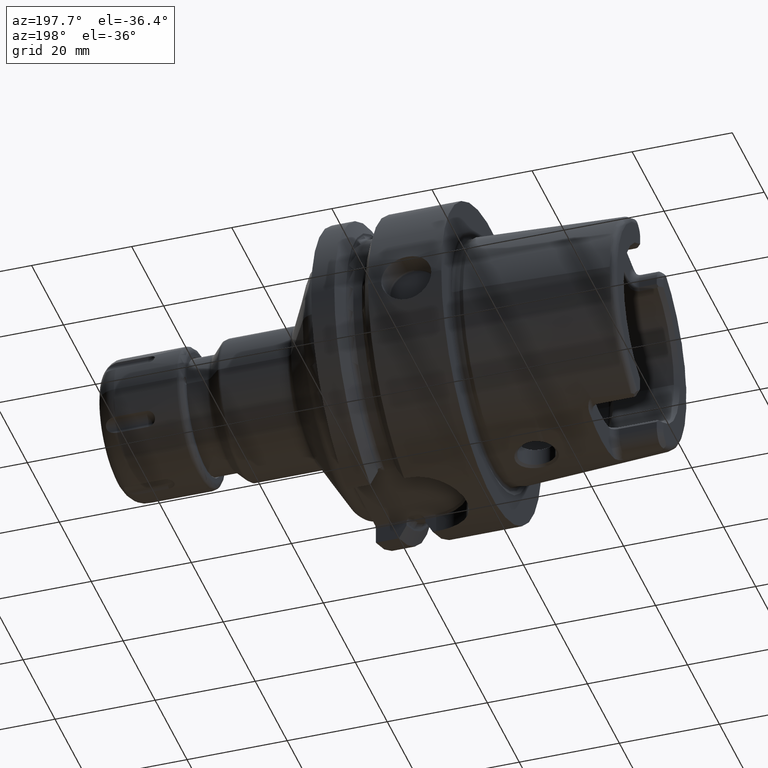
[diagram: clean part render]
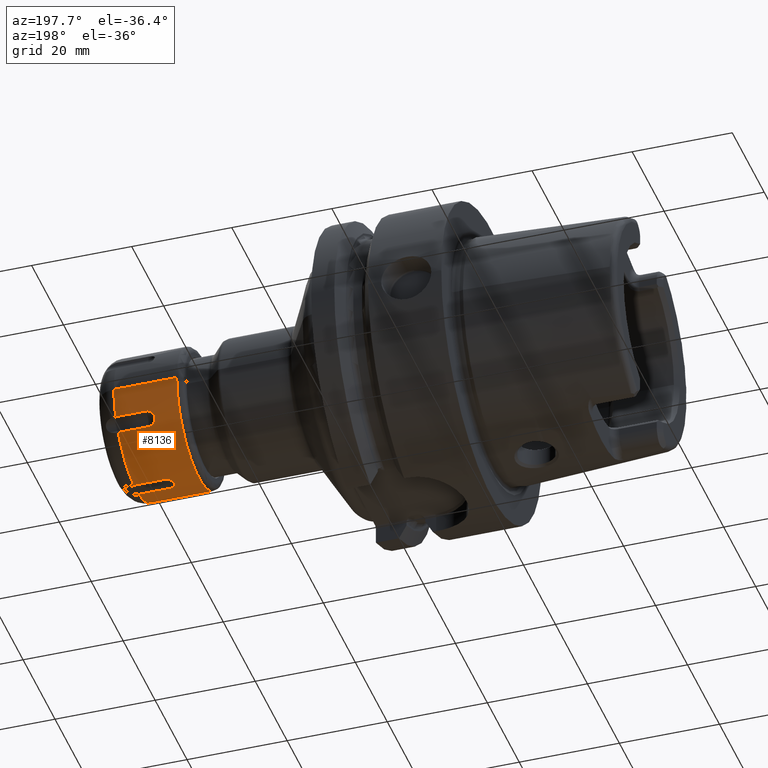
[diagram: same view with one face highlighted and labeled with its STEP entity id]
A machine part, auxiliary view. The second image highlights one B-rep face of the part: STEP entity #8136.
In plain terms, the highlighted cylindrical surface (partial cylindrical patch) has radius 14 mm, axis along (-1, 0, 0).
Its self-contained STEP definition (entity closure, byte-faithful):
#6847=CARTESIAN_POINT('',(1.25E0,0.E0,0.E0));
#6848=DIRECTION('',(-1.E0,0.E0,0.E0));
#6849=DIRECTION('',(0.E0,1.E0,0.E0));
#6850=AXIS2_PLACEMENT_3D('',#6847,#6848,#6849);
#6893=DIRECTION('',(-1.E0,0.E0,0.E0));
#6894=VECTOR('',#6893,1.255E1);
#6895=CARTESIAN_POINT('',(1.38E1,-1.4E1,0.E0));
#6896=LINE('',#6895,#6894);
#6897=DIRECTION('',(-1.E0,0.E0,0.E0));
#6898=VECTOR('',#6897,1.255E1);
#6899=CARTESIAN_POINT('',(1.38E1,1.4E1,0.E0));
#6900=LINE('',#6899,#6898);
#7056=DIRECTION('',(-1.E0,0.E0,0.E0));
#7057=VECTOR('',#7056,6.E0);
#7058=CARTESIAN_POINT('',(1.38E1,-1.281804368029E1,-5.630076039476E0));
#7059=LINE('',#7058,#7057);
#7060=DIRECTION('',(-1.E0,0.E0,0.E0));
#7061=VECTOR('',#7060,6.E0);
#7062=CARTESIAN_POINT('',(1.38E1,-1.128481071557E1,-8.285713434208E0));
#7063=LINE('',#7062,#7061);
#7064=CARTESIAN_POINT('',(1.38E1,0.E0,0.E0));
#7065=DIRECTION('',(-1.E0,0.E0,0.E0));
#7066=DIRECTION('',(0.E0,-1.095166403370E-1,-9.939849624060E-1));
#7067=AXIS2_PLACEMENT_3D('',#7064,#7065,#7066);
#7069=DIRECTION('',(-1.E0,0.E0,0.E0));
#7070=VECTOR('',#7069,6.E0);
#7071=CARTESIAN_POINT('',(1.38E1,-1.533232964719E0,-1.391578947368E1));
#7072=LINE('',#7071,#7070);
#7073=DIRECTION('',(-1.E0,0.E0,0.E0));
#7074=VECTOR('',#7073,6.E0);
#7075=CARTESIAN_POINT('',(1.38E1,1.533232964719E0,-1.391578947368E1));
#7076=LINE('',#7075,#7074);
#7077=CARTESIAN_POINT('',(1.38E1,0.E0,0.E0));
#7078=DIRECTION('',(-1.E0,0.E0,0.E0));
#7079=DIRECTION('',(0.E0,8.060579082548E-1,-5.918366738720E-1));
#7080=AXIS2_PLACEMENT_3D('',#7077,#7078,#7079);
#7082=DIRECTION('',(-1.E0,0.E0,0.E0));
#7083=VECTOR('',#7082,6.E0);
#7084=CARTESIAN_POINT('',(1.38E1,1.128481071557E1,-8.285713434208E0));
#7085=LINE('',#7084,#7083);
#7086=DIRECTION('',(-1.E0,0.E0,0.E0));
#7087=VECTOR('',#7086,6.E0);
#7088=CARTESIAN_POINT('',(1.38E1,1.281804368029E1,-5.630076039476E0));
#7089=LINE('',#7088,#7087);
#7090=CARTESIAN_POINT('',(1.38E1,0.E0,0.E0));
#7091=DIRECTION('',(-1.E0,0.E0,0.E0));
#7092=DIRECTION('',(0.E0,1.E0,0.E0));
#7093=AXIS2_PLACEMENT_3D('',#7090,#7091,#7092);
#7095=CARTESIAN_POINT('',(1.38E1,0.E0,0.E0));
#7096=DIRECTION('',(-1.E0,0.E0,0.E0));
#7097=DIRECTION('',(0.E0,-9.155745485919E-1,-4.021482885340E-1));
#7098=AXIS2_PLACEMENT_3D('',#7095,#7096,#7097);
#7105=CARTESIAN_POINT('',(7.8E0,-1.128481071557E1,-8.285713434208E0));
#7106=CARTESIAN_POINT('',(7.595839951611E0,-1.128481071557E1,
-8.285713434208E0));
#7107=CARTESIAN_POINT('',(7.226319548934E0,-1.132705232573E1,
-8.228557391698E0));
#7108=CARTESIAN_POINT('',(6.769740977542E0,-1.147742469002E1,
-8.018707491495E0));
#7109=CARTESIAN_POINT('',(6.462240933559E0,-1.166433794481E1,
-7.744920941279E0));
#7110=CARTESIAN_POINT('',(6.279952581316E0,-1.185509638575E1,
-7.449619440697E0));
#7111=CARTESIAN_POINT('',(6.196631424044E0,-1.203531719854E1,
-7.154921317709E0));
#7112=CARTESIAN_POINT('',(6.196926516058E0,-1.221544450092E1,
-6.842867717933E0));
#7113=CARTESIAN_POINT('',(6.281290302868E0,-1.238079419784E1,
-6.538811147091E0));
#7114=CARTESIAN_POINT('',(6.464209715350E0,-1.254062815279E1,
-6.226791796528E0));
#7115=CARTESIAN_POINT('',(6.771843091603E0,-1.268377784569E1,
-5.928956240038E0));
#7116=CARTESIAN_POINT('',(7.228173121947E0,-1.278988073328E1,
-5.694743037751E0));
#7117=CARTESIAN_POINT('',(7.596582155507E0,-1.281804368029E1,
-5.630076039476E0));
#7118=CARTESIAN_POINT('',(7.8E0,-1.281804368029E1,-5.630076039476E0));
#7141=CARTESIAN_POINT('',(7.8E0,1.533232964719E0,-1.391578947368E1));
#7142=CARTESIAN_POINT('',(7.596387968886E0,1.533232964719E0,-1.391578947368E1));
#7143=CARTESIAN_POINT('',(7.227653477587E0,1.463029402719E0,-1.392374831992E1));
#7144=CARTESIAN_POINT('',(6.771021249517E0,1.206639409894E0,-1.394900608867E1));
#7145=CARTESIAN_POINT('',(6.463266589632E0,8.767016339593E-1,
-1.397398041729E1));
#7146=CARTESIAN_POINT('',(6.280249803400E0,5.246542758793E-1,
-1.399159355639E1));
#7147=CARTESIAN_POINT('',(6.197041855240E0,1.814525949884E-1,
-1.400030770117E1));
#7148=CARTESIAN_POINT('',(6.196743745399E0,-1.788477306734E-1,
-1.400033986771E1));
#7149=CARTESIAN_POINT('',(6.279242194999E0,-5.219765396698E-1,
-1.399169592172E1));
#7150=CARTESIAN_POINT('',(6.461791699005E0,-8.747150926903E-1,
-1.397411287088E1));
#7151=CARTESIAN_POINT('',(6.769595129108E0,-1.205697383313E0,
-1.394909574645E1));
#7152=CARTESIAN_POINT('',(7.227434022241E0,-1.463069730599E0,
-1.392374632811E1));
#7153=CARTESIAN_POINT('',(7.596345019481E0,-1.533232964719E0,
-1.391578947368E1));
#7154=CARTESIAN_POINT('',(7.8E0,-1.533232964719E0,-1.391578947368E1));
#7177=CARTESIAN_POINT('',(7.8E0,1.281804368029E1,-5.630076039476E0));
#7178=CARTESIAN_POINT('',(7.595839428222E0,1.281804368029E1,-5.630076039476E0));
#7179=CARTESIAN_POINT('',(7.226328081200E0,1.278966042945E1,-5.695247848370E0));
#7180=CARTESIAN_POINT('',(6.769909499689E0,1.268316471117E1,-5.930283008714E0));
#7181=CARTESIAN_POINT('',(6.462355509989E0,1.253954330822E1,-6.228999347490E0));
#7182=CARTESIAN_POINT('',(6.279995667147E0,1.237917054857E1,-6.541887544021E0));
#7183=CARTESIAN_POINT('',(6.196631888501E0,1.221402959888E1,-6.845382222662E0));
#7184=CARTESIAN_POINT('',(6.196922176630E0,1.203381232523E1,-7.157464753397E0));
#7185=CARTESIAN_POINT('',(6.281319433961E0,1.185312403461E1,-7.452756742926E0));
#7186=CARTESIAN_POINT('',(6.464298777121E0,1.166279912054E1,-7.747219368189E0));
#7187=CARTESIAN_POINT('',(6.771980022873E0,1.147646445031E1,-8.020067597676E0));
#7188=CARTESIAN_POINT('',(7.228127537832E0,1.132675056860E1,-8.228964820459E0));
#7189=CARTESIAN_POINT('',(7.596558814851E0,1.128481071557E1,-8.285713434208E0));
#7190=CARTESIAN_POINT('',(7.8E0,1.128481071557E1,-8.285713434208E0));
#7736=CARTESIAN_POINT('',(1.38E1,1.4E1,0.E0));
#7738=VERTEX_POINT('',#7736);
#7739=CARTESIAN_POINT('',(1.25E0,1.4E1,0.E0));
#7740=VERTEX_POINT('',#7739);
#7741=CARTESIAN_POINT('',(1.25E0,-1.4E1,0.E0));
#7743=VERTEX_POINT('',#7741);
#7746=CARTESIAN_POINT('',(1.38E1,-1.4E1,0.E0));
#7748=VERTEX_POINT('',#7746);
#7749=CARTESIAN_POINT('',(1.38E1,-1.533232964719E0,-1.391578947368E1));
#7750=CARTESIAN_POINT('',(7.8E0,-1.533232964719E0,-1.391578947368E1));
#7751=VERTEX_POINT('',#7749);
#7752=VERTEX_POINT('',#7750);
#7753=CARTESIAN_POINT('',(1.38E1,1.533232964719E0,-1.391578947368E1));
#7754=CARTESIAN_POINT('',(7.8E0,1.533232964719E0,-1.391578947368E1));
#7755=VERTEX_POINT('',#7753);
#7756=VERTEX_POINT('',#7754);
#7757=CARTESIAN_POINT('',(1.38E1,1.128481071557E1,-8.285713434208E0));
#7758=CARTESIAN_POINT('',(7.8E0,1.128481071557E1,-8.285713434208E0));
#7759=VERTEX_POINT('',#7757);
#7760=VERTEX_POINT('',#7758);
#7761=CARTESIAN_POINT('',(1.38E1,1.281804368029E1,-5.630076039476E0));
#7762=CARTESIAN_POINT('',(7.8E0,1.281804368029E1,-5.630076039476E0));
#7763=VERTEX_POINT('',#7761);
#7764=VERTEX_POINT('',#7762);
#7789=CARTESIAN_POINT('',(1.38E1,-1.281804368029E1,-5.630076039476E0));
#7790=CARTESIAN_POINT('',(7.8E0,-1.281804368029E1,-5.630076039476E0));
#7791=VERTEX_POINT('',#7789);
#7792=VERTEX_POINT('',#7790);
#7793=CARTESIAN_POINT('',(1.38E1,-1.128481071557E1,-8.285713434208E0));
#7794=CARTESIAN_POINT('',(7.8E0,-1.128481071557E1,-8.285713434208E0));
#7795=VERTEX_POINT('',#7793);
#7796=VERTEX_POINT('',#7794);
#8106=CARTESIAN_POINT('',(1.869E1,0.E0,0.E0));
#8107=DIRECTION('',(-1.E0,0.E0,0.E0));
#8108=DIRECTION('',(0.E0,1.E0,0.E0));
#8109=AXIS2_PLACEMENT_3D('',#8106,#8107,#8108);
#8110=CYLINDRICAL_SURFACE('',#8109,1.4E1);
#8111=ORIENTED_EDGE('',*,*,#8101,.T.);
#8113=ORIENTED_EDGE('',*,*,#8112,.F.);
#8114=ORIENTED_EDGE('',*,*,#8097,.F.);
#8115=ORIENTED_EDGE('',*,*,#8086,.F.);
#8117=ORIENTED_EDGE('',*,*,#8116,.T.);
#8119=ORIENTED_EDGE('',*,*,#8118,.F.);
#8121=ORIENTED_EDGE('',*,*,#8120,.F.);
#8122=ORIENTED_EDGE('',*,*,#8082,.F.);
#8124=ORIENTED_EDGE('',*,*,#8123,.T.);
#8126=ORIENTED_EDGE('',*,*,#8125,.F.);
#8128=ORIENTED_EDGE('',*,*,#8127,.F.);
#8129=ORIENTED_EDGE('',*,*,#8078,.F.);
#8130=ORIENTED_EDGE('',*,*,#7959,.T.);
#8131=ORIENTED_EDGE('',*,*,#7920,.T.);
#8132=ORIENTED_EDGE('',*,*,#7956,.F.);
#8133=ORIENTED_EDGE('',*,*,#8072,.F.);
#8134=EDGE_LOOP('',(#8111,#8113,#8114,#8115,#8117,#8119,#8121,#8122,#8124,#8126,
#8128,#8129,#8130,#8131,#8132,#8133));
#8135=FACE_OUTER_BOUND('',#8134,.F.);
#8136=ADVANCED_FACE('',(#8135),#8110,.T.);
#6851=CIRCLE('',#6850,1.4E1);
#7068=CIRCLE('',#7067,1.4E1);
#7081=CIRCLE('',#7080,1.4E1);
#7094=CIRCLE('',#7093,1.4E1);
#7099=CIRCLE('',#7098,1.4E1);
#7119=B_SPLINE_CURVE_WITH_KNOTS('',3,(#7105,#7106,#7107,#7108,#7109,#7110,#7111,
#7112,#7113,#7114,#7115,#7116,#7117,#7118),.UNSPECIFIED.,.F.,.F.,(4,1,1,1,1,1,1,
1,1,1,1,4),(0.E0,9.090909090909E-2,1.818181818182E-1,2.727272727273E-1,
3.636363636364E-1,4.545454545455E-1,5.454545454545E-1,6.363636363636E-1,
7.272727272727E-1,8.181818181818E-1,9.090909090909E-1,1.E0),.UNSPECIFIED.);
#7155=B_SPLINE_CURVE_WITH_KNOTS('',3,(#7141,#7142,#7143,#7144,#7145,#7146,#7147,
#7148,#7149,#7150,#7151,#7152,#7153,#7154),.UNSPECIFIED.,.F.,.F.,(4,1,1,1,1,1,1,
1,1,1,1,4),(0.E0,9.090909090909E-2,1.818181818182E-1,2.727272727273E-1,
3.636363636364E-1,4.545454545455E-1,5.454545454545E-1,6.363636363636E-1,
7.272727272727E-1,8.181818181818E-1,9.090909090909E-1,1.E0),.UNSPECIFIED.);
#7191=B_SPLINE_CURVE_WITH_KNOTS('',3,(#7177,#7178,#7179,#7180,#7181,#7182,#7183,
#7184,#7185,#7186,#7187,#7188,#7189,#7190),.UNSPECIFIED.,.F.,.F.,(4,1,1,1,1,1,1,
1,1,1,1,4),(0.E0,9.090909090909E-2,1.818181818182E-1,2.727272727273E-1,
3.636363636364E-1,4.545454545455E-1,5.454545454545E-1,6.363636363636E-1,
7.272727272727E-1,8.181818181818E-1,9.090909090909E-1,1.E0),.UNSPECIFIED.);
#7920=EDGE_CURVE('',#7740,#7743,#6851,.T.);
#7956=EDGE_CURVE('',#7748,#7743,#6896,.T.);
#7959=EDGE_CURVE('',#7738,#7740,#6900,.T.);
#8072=EDGE_CURVE('',#7791,#7748,#7099,.T.);
#8078=EDGE_CURVE('',#7738,#7763,#7094,.T.);
#8082=EDGE_CURVE('',#7759,#7755,#7081,.T.);
#8086=EDGE_CURVE('',#7751,#7795,#7068,.T.);
#8097=EDGE_CURVE('',#7795,#7796,#7063,.T.);
#8101=EDGE_CURVE('',#7791,#7792,#7059,.T.);
#8112=EDGE_CURVE('',#7796,#7792,#7119,.T.);
#8116=EDGE_CURVE('',#7751,#7752,#7072,.T.);
#8118=EDGE_CURVE('',#7756,#7752,#7155,.T.);
#8120=EDGE_CURVE('',#7755,#7756,#7076,.T.);
#8123=EDGE_CURVE('',#7759,#7760,#7085,.T.);
#8125=EDGE_CURVE('',#7764,#7760,#7191,.T.);
#8127=EDGE_CURVE('',#7763,#7764,#7089,.T.);